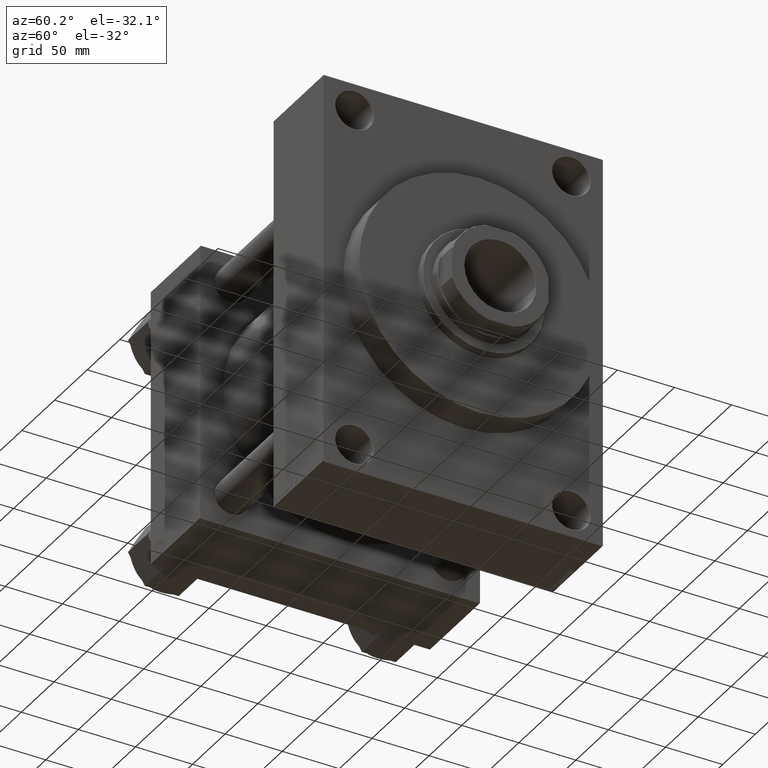
[diagram: clean part render]
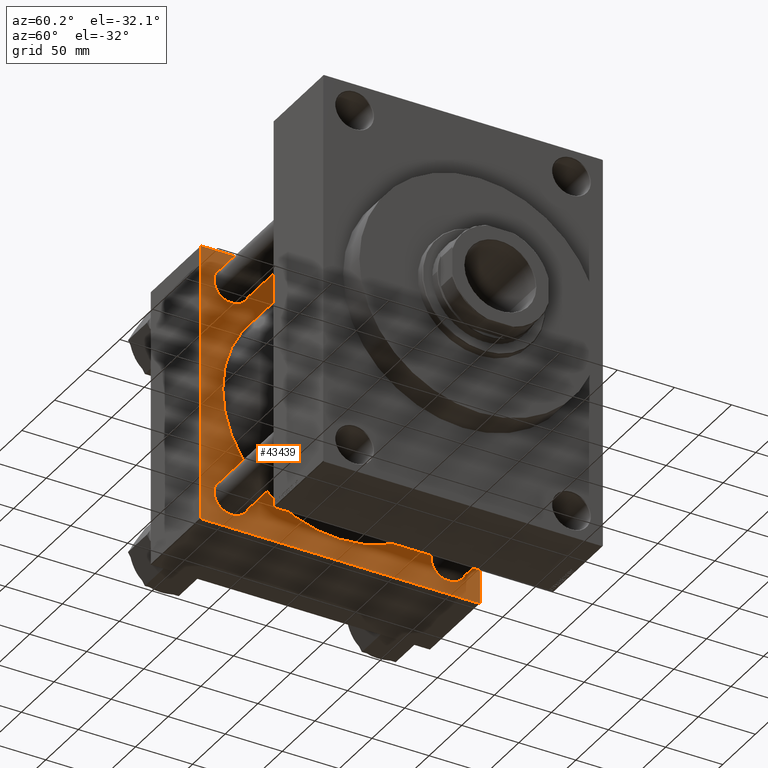
[diagram: same view with one face highlighted and labeled with its STEP entity id]
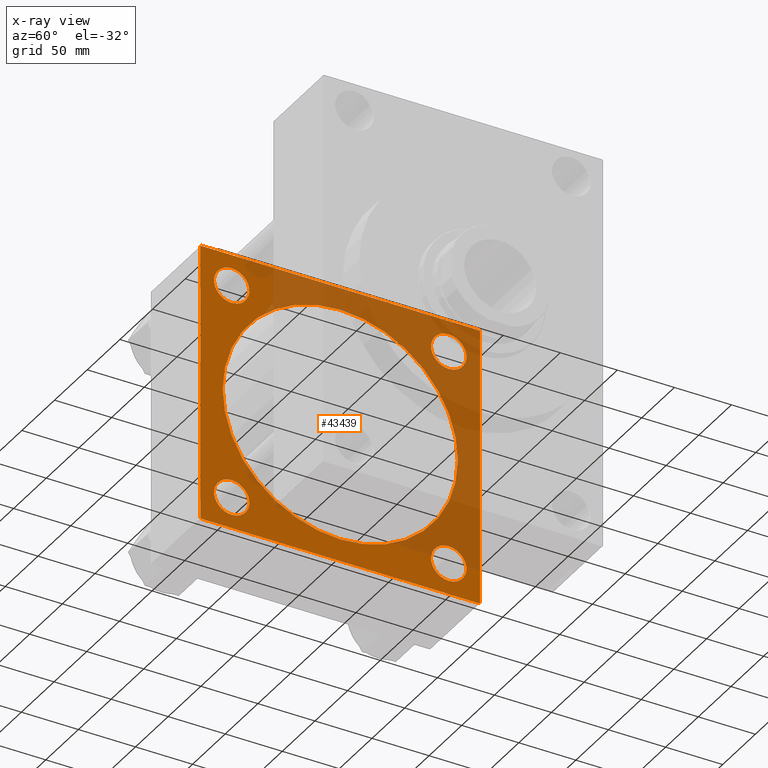
[diagram: x-ray of the same camera — body ghosted, the highlighted face saturated]
A machine part, auxiliary view. The second image highlights one B-rep face of the part: STEP entity #43439.
The next image is the same camera in x-ray: the body ghosted, the highlighted face saturated — about 46% of this face is hidden behind the body in this view.
In plain terms, the highlighted planar face has unit normal (-1, 0, 0).
Its self-contained STEP definition (entity closure, byte-faithful):
#176 = EDGE_CURVE ( 'NONE', #26961, #44177, #40208, .T. ) ;
#302 = CARTESIAN_POINT ( 'NONE',  ( 76.00000000000000000, -2.602085213965210642E-15, 0.000000000000000000 ) ) ;
#366 = DIRECTION ( 'NONE',  ( -1.000000000000000000, 0.000000000000000000, 0.000000000000000000 ) ) ;
#442 = AXIS2_PLACEMENT_3D ( 'NONE', #7594, #44428, #32878 ) ;
#815 = ORIENTED_EDGE ( 'NONE', *, *, #4461, .F. ) ;
#895 = EDGE_LOOP ( 'NONE', ( #35189, #20048 ) ) ;
#2082 = CARTESIAN_POINT ( 'NONE',  ( 76.00000000000000000, 122.5000000000000568, 122.0000000000000853 ) ) ;
#3583 = CARTESIAN_POINT ( 'NONE',  ( 76.00000000000000000, 122.0000000000000568, 122.5000000000000284 ) ) ;
#3644 = DIRECTION ( 'NONE',  ( -0.000000000000000000, 0.7071067811865474617, 0.7071067811865474617 ) ) ;
#4056 = DIRECTION ( 'NONE',  ( -1.000000000000000000, 0.000000000000000000, 0.000000000000000000 ) ) ;
#4291 = EDGE_CURVE ( 'NONE', #28574, #47030, #9463, .T. ) ;
#4443 = ORIENTED_EDGE ( 'NONE', *, *, #41176, .T. ) ;
#4461 = EDGE_CURVE ( 'NONE', #24895, #21046, #35554, .T. ) ;
#4930 = DIRECTION ( 'NONE',  ( 0.000000000000000000, 0.7071067811865474617, -0.7071067811865474617 ) ) ;
#4961 = VERTEX_POINT ( 'NONE', #21682 ) ;
#5354 = CARTESIAN_POINT ( 'NONE',  ( 76.00000000000000000, 122.5000000000000568, -121.9999999999999432 ) ) ;
#5785 = DIRECTION ( 'NONE',  ( -0.000000000000000000, -0.7071067811865867636, -0.7071067811865082708 ) ) ;
#5834 = CIRCLE ( 'NONE', #16589, 15.50000000000001421 ) ;
#6150 = CARTESIAN_POINT ( 'NONE',  ( 76.00000000000000000, 0.000000000000000000, 0.000000000000000000 ) ) ;
#6204 = AXIS2_PLACEMENT_3D ( 'NONE', #11441, #366, #7596 ) ;
#6398 = AXIS2_PLACEMENT_3D ( 'NONE', #38698, #13398, #23528 ) ;
#6616 = DIRECTION ( 'NONE',  ( -1.000000000000000000, 0.000000000000000000, 0.000000000000000000 ) ) ;
#7287 = EDGE_LOOP ( 'NONE', ( #8504, #43408 ) ) ;
#7594 = CARTESIAN_POINT ( 'NONE',  ( 76.00000000000000000, 95.09999999999999432, 95.10000000000002274 ) ) ;
#7596 = DIRECTION ( 'NONE',  ( 0.000000000000000000, 0.000000000000000000, 1.000000000000000000 ) ) ;
#8504 = ORIENTED_EDGE ( 'NONE', *, *, #38241, .T. ) ;
#8623 = AXIS2_PLACEMENT_3D ( 'NONE', #36833, #4056, #44284 ) ;
#8928 = EDGE_CURVE ( 'NONE', #35389, #4961, #27985, .T. ) ;
#9225 = CARTESIAN_POINT ( 'NONE',  ( 76.00000000000000000, -95.09999999999996589, -95.10000000000005116 ) ) ;
#9298 = CARTESIAN_POINT ( 'NONE',  ( 76.00000000000000000, -122.4999999999999716, 122.0000000000001137 ) ) ;
#9463 = CIRCLE ( 'NONE', #6398, 103.0000000000000000 ) ;
#9616 = AXIS2_PLACEMENT_3D ( 'NONE', #28258, #36452, #28490 ) ;
#9631 = DIRECTION ( 'NONE',  ( 0.000000000000000000, 0.000000000000000000, 1.000000000000000000 ) ) ;
#9915 = CARTESIAN_POINT ( 'NONE',  ( 76.00000000000000000, -95.09999999999996589, 79.60000000000003695 ) ) ;
#10100 = CARTESIAN_POINT ( 'NONE',  ( 76.00000000000000000, -122.4999999999999716, 122.0000000000001137 ) ) ;
#10255 = CARTESIAN_POINT ( 'NONE',  ( 76.00000000000000000, 122.5000000000000568, 122.5000000000000284 ) ) ;
#10654 = EDGE_CURVE ( 'NONE', #30953, #44419, #19630, .T. ) ;
#10661 = DIRECTION ( 'NONE',  ( 1.000000000000000000, -0.000000000000000000, -0.000000000000000000 ) ) ;
#11073 = AXIS2_PLACEMENT_3D ( 'NONE', #6150, #12676, #27831 ) ;
#11285 = VECTOR ( 'NONE', #36112, 1000.000000000000000 ) ;
#11441 = CARTESIAN_POINT ( 'NONE',  ( 76.00000000000000000, 95.09999999999999432, 95.10000000000002274 ) ) ;
#11489 = CARTESIAN_POINT ( 'NONE',  ( 76.00000000000000000, 122.0000000000000568, -122.5000000000000000 ) ) ;
#11536 = ORIENTED_EDGE ( 'NONE', *, *, #34268, .T. ) ;
#11768 = ORIENTED_EDGE ( 'NONE', *, *, #4291, .F. ) ;
#12229 = DIRECTION ( 'NONE',  ( 0.000000000000000000, -1.132880637372608493E-16, -1.000000000000000000 ) ) ;
#12406 = VECTOR ( 'NONE', #39753, 1000.000000000000000 ) ;
#12676 = DIRECTION ( 'NONE',  ( -1.000000000000000000, 0.000000000000000000, 0.000000000000000000 ) ) ;
#12852 = ORIENTED_EDGE ( 'NONE', *, *, #39245, .F. ) ;
#12935 = EDGE_CURVE ( 'NONE', #17573, #27178, #42020, .T. ) ;
#13142 = FACE_OUTER_BOUND ( 'NONE', #39071, .T. ) ;
#13309 = DIRECTION ( 'NONE',  ( 0.000000000000000000, 0.000000000000000000, 1.000000000000000000 ) ) ;
#13398 = DIRECTION ( 'NONE',  ( 1.000000000000000000, -0.000000000000000000, -0.000000000000000000 ) ) ;
#13540 = CARTESIAN_POINT ( 'NONE',  ( 76.00000000000000000, 122.5000000000000568, -122.5000000000000000 ) ) ;
#13721 = LINE ( 'NONE', #10100, #15158 ) ;
#14120 = ORIENTED_EDGE ( 'NONE', *, *, #17694, .T. ) ;
#14190 = VECTOR ( 'NONE', #12229, 1000.000000000000000 ) ;
#14691 = VERTEX_POINT ( 'NONE', #17239 ) ;
#14763 = AXIS2_PLACEMENT_3D ( 'NONE', #46946, #39726, #9631 ) ;
#14890 = CARTESIAN_POINT ( 'NONE',  ( 76.00000000000000000, -95.09999999999996589, -79.60000000000003695 ) ) ;
#15158 = VECTOR ( 'NONE', #5785, 1000.000000000000114 ) ;
#16251 = EDGE_CURVE ( 'NONE', #27178, #17573, #5834, .T. ) ;
#16524 = VECTOR ( 'NONE', #4930, 1000.000000000000114 ) ;
#16589 = AXIS2_PLACEMENT_3D ( 'NONE', #42307, #32169, #35560 ) ;
#16975 = FACE_BOUND ( 'NONE', #43533, .T. ) ;
#17207 = FACE_BOUND ( 'NONE', #35296, .T. ) ;
#17239 = CARTESIAN_POINT ( 'NONE',  ( 76.00000000000000000, 122.0000000000000568, 122.5000000000000284 ) ) ;
#17285 = VECTOR ( 'NONE', #28220, 1000.000000000000000 ) ;
#17573 = VERTEX_POINT ( 'NONE', #9915 ) ;
#17694 = EDGE_CURVE ( 'NONE', #35389, #21046, #25085, .T. ) ;
#17811 = ORIENTED_EDGE ( 'NONE', *, *, #8928, .F. ) ;
#19630 = CIRCLE ( 'NONE', #442, 15.50000000000006928 ) ;
#20048 = ORIENTED_EDGE ( 'NONE', *, *, #31755, .T. ) ;
#20638 = ORIENTED_EDGE ( 'NONE', *, *, #12935, .T. ) ;
#20986 = VECTOR ( 'NONE', #47104, 1000.000000000000000 ) ;
#21046 = VERTEX_POINT ( 'NONE', #5354 ) ;
#21531 = DIRECTION ( 'NONE',  ( 0.000000000000000000, 0.000000000000000000, 1.000000000000000000 ) ) ;
#21682 = CARTESIAN_POINT ( 'NONE',  ( 76.00000000000000000, -122.0000000000000000, -122.5000000000000568 ) ) ;
#21686 = CIRCLE ( 'NONE', #14763, 15.50000000000001421 ) ;
#21696 = CARTESIAN_POINT ( 'NONE',  ( 76.00000000000000000, 122.5000000000000568, -122.0000000000000000 ) ) ;
#22060 = EDGE_CURVE ( 'NONE', #24895, #14691, #24780, .T. ) ;
#22484 = AXIS2_PLACEMENT_3D ( 'NONE', #302, #10661, #25352 ) ;
#22871 = EDGE_CURVE ( 'NONE', #34733, #40027, #13721, .T. ) ;
#22970 = CARTESIAN_POINT ( 'NONE',  ( 76.00000000000000000, -122.5000000000000000, -122.0000000000000568 ) ) ;
#23439 = CARTESIAN_POINT ( 'NONE',  ( 76.00000000000000000, 95.09999999999999432, 79.59999999999995168 ) ) ;
#23528 = DIRECTION ( 'NONE',  ( 0.000000000000000000, 0.000000000000000000, 1.000000000000000000 ) ) ;
#23926 = ORIENTED_EDGE ( 'NONE', *, *, #32291, .T. ) ;
#24211 = FACE_BOUND ( 'NONE', #42514, .T. ) ;
#24780 = LINE ( 'NONE', #3583, #11285 ) ;
#24895 = VERTEX_POINT ( 'NONE', #2082 ) ;
#24965 = CARTESIAN_POINT ( 'NONE',  ( 76.00000000000000000, -95.09999999999996589, -110.6000000000000654 ) ) ;
#25054 = LINE ( 'NONE', #43114, #12406 ) ;
#25085 = LINE ( 'NONE', #21696, #25855 ) ;
#25352 = DIRECTION ( 'NONE',  ( 0.000000000000000000, 0.000000000000000000, 1.000000000000000000 ) ) ;
#25766 = ORIENTED_EDGE ( 'NONE', *, *, #16251, .T. ) ;
#25855 = VECTOR ( 'NONE', #3644, 1000.000000000000114 ) ;
#26126 = ORIENTED_EDGE ( 'NONE', *, *, #45999, .T. ) ;
#26961 = VERTEX_POINT ( 'NONE', #14890 ) ;
#27134 = FACE_BOUND ( 'NONE', #895, .T. ) ;
#27178 = VERTEX_POINT ( 'NONE', #30629 ) ;
#27713 = ORIENTED_EDGE ( 'NONE', *, *, #22871, .T. ) ;
#27831 = DIRECTION ( 'NONE',  ( 0.000000000000000000, 0.000000000000000000, 1.000000000000000000 ) ) ;
#27985 = LINE ( 'NONE', #13540, #17285 ) ;
#28220 = DIRECTION ( 'NONE',  ( 0.000000000000000000, -1.000000000000000000, -2.265761274745216987E-16 ) ) ;
#28258 = CARTESIAN_POINT ( 'NONE',  ( 76.00000000000000000, 95.09999999999999432, -95.10000000000002274 ) ) ;
#28490 = DIRECTION ( 'NONE',  ( 0.000000000000000000, 0.000000000000000000, 1.000000000000000000 ) ) ;
#28574 = VERTEX_POINT ( 'NONE', #32214 ) ;
#30040 = CIRCLE ( 'NONE', #6204, 15.50000000000006928 ) ;
#30108 = AXIS2_PLACEMENT_3D ( 'NONE', #9225, #46300, #13309 ) ;
#30629 = CARTESIAN_POINT ( 'NONE',  ( 76.00000000000000000, -95.09999999999996589, 110.6000000000000654 ) ) ;
#30919 = ORIENTED_EDGE ( 'NONE', *, *, #22060, .T. ) ;
#30953 = VERTEX_POINT ( 'NONE', #23439 ) ;
#31755 = EDGE_CURVE ( 'NONE', #44419, #30953, #30040, .T. ) ;
#31788 = VERTEX_POINT ( 'NONE', #22970 ) ;
#32169 = DIRECTION ( 'NONE',  ( -1.000000000000000000, 0.000000000000000000, 0.000000000000000000 ) ) ;
#32214 = CARTESIAN_POINT ( 'NONE',  ( 76.00000000000000000, 1.001177681725252697E-14, -103.0000000000000000 ) ) ;
#32291 = EDGE_CURVE ( 'NONE', #14691, #34733, #25054, .T. ) ;
#32878 = DIRECTION ( 'NONE',  ( 0.000000000000000000, 0.000000000000000000, 1.000000000000000000 ) ) ;
#34268 = EDGE_CURVE ( 'NONE', #38089, #46075, #43987, .T. ) ;
#34733 = VERTEX_POINT ( 'NONE', #36895 ) ;
#35189 = ORIENTED_EDGE ( 'NONE', *, *, #10654, .T. ) ;
#35296 = EDGE_LOOP ( 'NONE', ( #12852, #11768 ) ) ;
#35389 = VERTEX_POINT ( 'NONE', #11489 ) ;
#35554 = LINE ( 'NONE', #10255, #20986 ) ;
#35560 = DIRECTION ( 'NONE',  ( 0.000000000000000000, 0.000000000000000000, 1.000000000000000000 ) ) ;
#36112 = DIRECTION ( 'NONE',  ( 0.000000000000000000, -0.7071067811865868746, 0.7071067811865081598 ) ) ;
#36452 = DIRECTION ( 'NONE',  ( -1.000000000000000000, 0.000000000000000000, 0.000000000000000000 ) ) ;
#36833 = CARTESIAN_POINT ( 'NONE',  ( 76.00000000000000000, 95.09999999999999432, -95.10000000000002274 ) ) ;
#36895 = CARTESIAN_POINT ( 'NONE',  ( 76.00000000000000000, -121.9999999999999716, 122.5000000000000000 ) ) ;
#37223 = CARTESIAN_POINT ( 'NONE',  ( 76.00000000000000000, -122.0000000000000000, -122.5000000000000568 ) ) ;
#38089 = VERTEX_POINT ( 'NONE', #46525 ) ;
#38241 = EDGE_CURVE ( 'NONE', #44177, #26961, #21686, .T. ) ;
#38698 = CARTESIAN_POINT ( 'NONE',  ( 76.00000000000000000, -2.602085213965210642E-15, 0.000000000000000000 ) ) ;
#39071 = EDGE_LOOP ( 'NONE', ( #17811, #14120, #815, #30919, #23926, #27713, #44860, #4443 ) ) ;
#39148 = FACE_BOUND ( 'NONE', #7287, .T. ) ;
#39245 = EDGE_CURVE ( 'NONE', #47030, #28574, #43247, .T. ) ;
#39587 = CIRCLE ( 'NONE', #9616, 15.50000000000006928 ) ;
#39726 = DIRECTION ( 'NONE',  ( -1.000000000000000000, 0.000000000000000000, 0.000000000000000000 ) ) ;
#39753 = DIRECTION ( 'NONE',  ( 0.000000000000000000, -1.000000000000000000, -1.132880637372608740E-16 ) ) ;
#39861 = CARTESIAN_POINT ( 'NONE',  ( 76.00000000000000000, -95.09999999999996589, 95.10000000000005116 ) ) ;
#40027 = VERTEX_POINT ( 'NONE', #9298 ) ;
#40208 = CIRCLE ( 'NONE', #30108, 15.50000000000001421 ) ;
#41176 = EDGE_CURVE ( 'NONE', #31788, #4961, #41775, .T. ) ;
#41775 = LINE ( 'NONE', #37223, #16524 ) ;
#42020 = CIRCLE ( 'NONE', #44332, 15.50000000000001421 ) ;
#42307 = CARTESIAN_POINT ( 'NONE',  ( 76.00000000000000000, -95.09999999999996589, 95.10000000000005116 ) ) ;
#42514 = EDGE_LOOP ( 'NONE', ( #11536, #26126 ) ) ;
#42753 = PLANE ( 'NONE',  #11073 ) ;
#42946 = CARTESIAN_POINT ( 'NONE',  ( 76.00000000000000000, 95.09999999999999432, -79.59999999999995168 ) ) ;
#43114 = CARTESIAN_POINT ( 'NONE',  ( 76.00000000000000000, 122.5000000000000568, 122.5000000000000284 ) ) ;
#43247 = CIRCLE ( 'NONE', #22484, 103.0000000000000000 ) ;
#43408 = ORIENTED_EDGE ( 'NONE', *, *, #176, .T. ) ;
#43439 = ADVANCED_FACE ( 'NONE', ( #39148, #24211, #16975, #27134, #17207, #13142 ), #42753, .F. ) ;
#43533 = EDGE_LOOP ( 'NONE', ( #20638, #25766 ) ) ;
#43987 = CIRCLE ( 'NONE', #8623, 15.50000000000006928 ) ;
#44177 = VERTEX_POINT ( 'NONE', #24965 ) ;
#44262 = LINE ( 'NONE', #45218, #14190 ) ;
#44284 = DIRECTION ( 'NONE',  ( 0.000000000000000000, 0.000000000000000000, 1.000000000000000000 ) ) ;
#44332 = AXIS2_PLACEMENT_3D ( 'NONE', #39861, #6616, #21531 ) ;
#44419 = VERTEX_POINT ( 'NONE', #46203 ) ;
#44428 = DIRECTION ( 'NONE',  ( -1.000000000000000000, 0.000000000000000000, 0.000000000000000000 ) ) ;
#44860 = ORIENTED_EDGE ( 'NONE', *, *, #45454, .T. ) ;
#44862 = CARTESIAN_POINT ( 'NONE',  ( 76.00000000000000000, -2.602085213965210642E-15, 103.0000000000000000 ) ) ;
#45218 = CARTESIAN_POINT ( 'NONE',  ( 76.00000000000000000, -122.4999999999999716, 122.5000000000000000 ) ) ;
#45454 = EDGE_CURVE ( 'NONE', #40027, #31788, #44262, .T. ) ;
#45999 = EDGE_CURVE ( 'NONE', #46075, #38089, #39587, .T. ) ;
#46075 = VERTEX_POINT ( 'NONE', #42946 ) ;
#46203 = CARTESIAN_POINT ( 'NONE',  ( 76.00000000000000000, 95.09999999999999432, 110.6000000000000938 ) ) ;
#46300 = DIRECTION ( 'NONE',  ( -1.000000000000000000, 0.000000000000000000, 0.000000000000000000 ) ) ;
#46525 = CARTESIAN_POINT ( 'NONE',  ( 76.00000000000000000, 95.09999999999999432, -110.6000000000000938 ) ) ;
#46946 = CARTESIAN_POINT ( 'NONE',  ( 76.00000000000000000, -95.09999999999996589, -95.10000000000005116 ) ) ;
#47030 = VERTEX_POINT ( 'NONE', #44862 ) ;
#47104 = DIRECTION ( 'NONE',  ( 0.000000000000000000, 0.000000000000000000, -1.000000000000000000 ) ) ;